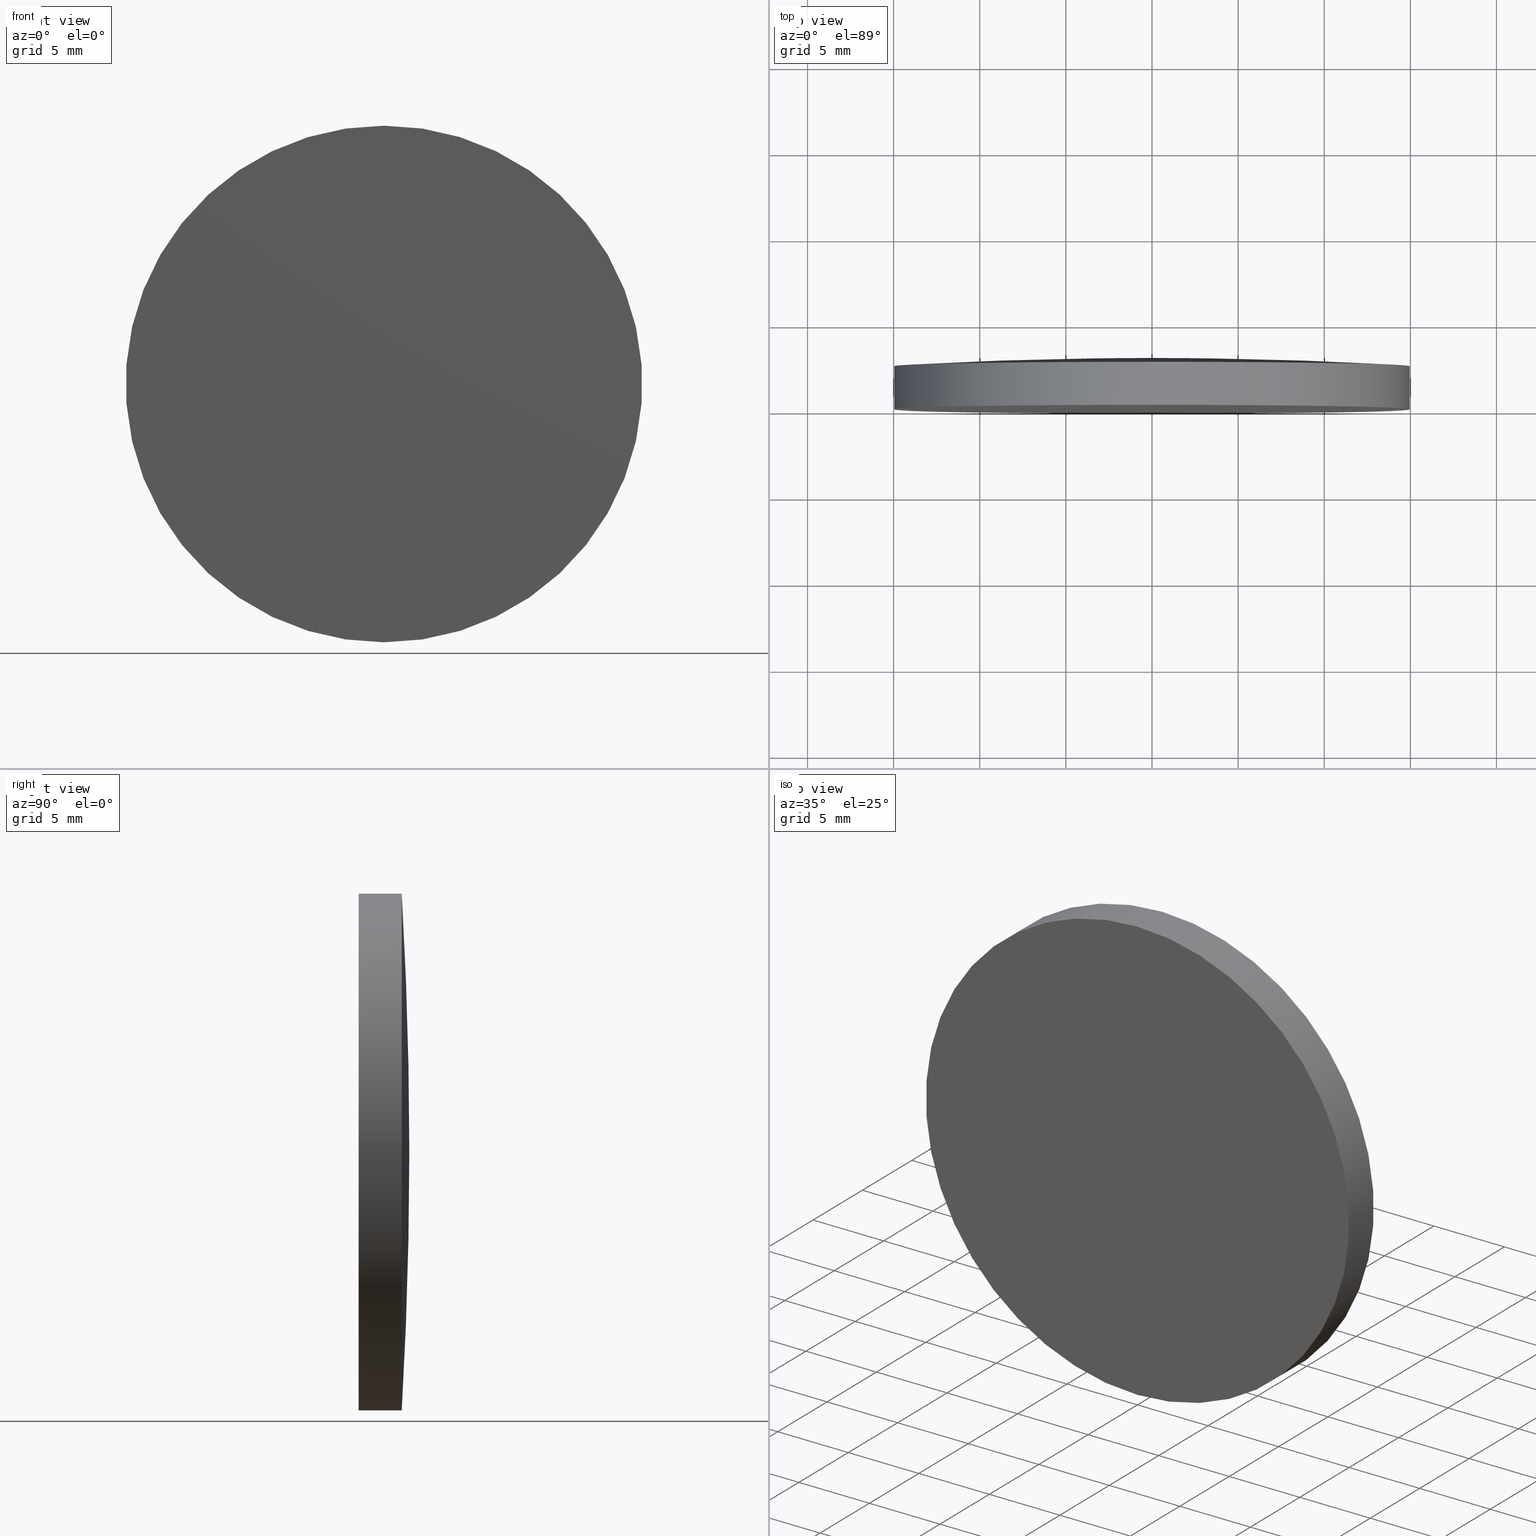
[diagram: canonical four-view strip — front | top / right | iso, engineering-drawing reading convention]
A machine part, canonical four-view strip (front | top / right | iso — engineering-drawing reading convention). The complete STEP part file that produces these views, byte-faithful:
ISO-10303-21;
HEADER;
FILE_DESCRIPTION (( 'STEP AP203' ),
    '1' );
FILE_NAME ('100580.STEP',
    '2024-05-10T01:19:31',
    ( '' ),
    ( '' ),
    'SwSTEP 2.0',
    'SolidWorks 2020',
    '' );
FILE_SCHEMA (( 'CONFIG_CONTROL_DESIGN' ));
ENDSEC;

DATA;
#1 = SHAPE_DEFINITION_REPRESENTATION ( #119, #191 ) ;
#2 = FACE_OUTER_BOUND ( 'NONE', #117, .T. ) ;
#3 = CARTESIAN_POINT ( 'NONE',  ( 0.000000000000000000, 2.939999999999999947, 0.000000000000000000 ) ) ;
#4 = FACE_OUTER_BOUND ( 'NONE', #192, .T. ) ;
#5 = AXIS2_PLACEMENT_3D ( 'NONE', #159, #8, #87 ) ;
#6 = PLANE ( 'NONE',  #23 ) ;
#7 = EDGE_CURVE ( 'NONE', #80, #58, #146, .T. ) ;
#8 = DIRECTION ( 'NONE',  ( -0.000000000000000000, 1.000000000000000000, -0.000000000000000000 ) ) ;
#9 = PERSON ( 'δָ��', 'δָ��', 'δָ��', ('δָ��'), ('δָ��'), ('δָ��') ) ;
#10 = PERSON_AND_ORGANIZATION_ROLE ( 'design_supplier' ) ;
#11 = CC_DESIGN_DATE_AND_TIME_ASSIGNMENT ( #140, #105, ( #201 ) ) ;
#12 = APPROVAL_DATE_TIME ( #199, #84 ) ;
#13 = DIRECTION ( 'NONE',  ( -0.000000000000000000, 1.000000000000000000, -0.000000000000000000 ) ) ;
#14 = APPROVAL_ROLE ( '' ) ;
#15 = CIRCLE ( 'NONE', #156, 258.1800000000000068 ) ;
#16 = APPROVAL_DATE_TIME ( #86, #76 ) ;
#17 = DIRECTION ( 'NONE',  ( 0.000000000000000000, 0.000000000000000000, 1.000000000000000000 ) ) ;
#18 = APPROVAL_STATUS ( 'not_yet_approved' ) ;
#19 = EDGE_LOOP ( 'NONE', ( #116, #115, #34, #132 ) ) ;
#20 = DIRECTION ( 'NONE',  ( -0.000000000000000000, 1.000000000000000000, -0.000000000000000000 ) ) ;
#21 = CC_DESIGN_PERSON_AND_ORGANIZATION_ASSIGNMENT ( #97, #65, ( #53 ) ) ;
#22 = DIRECTION ( 'NONE',  ( -0.000000000000000000, 1.000000000000000000, -0.000000000000000000 ) ) ;
#23 = AXIS2_PLACEMENT_3D ( 'NONE', #55, #127, #77 ) ;
#24 = ADVANCED_FACE ( 'NONE', ( #4 ), #144, .T. ) ;
#25 = VERTEX_POINT ( 'NONE', #3 ) ;
#26 =( LENGTH_UNIT ( ) NAMED_UNIT ( * ) SI_UNIT ( .MILLI., .METRE. ) );
#27 = PRODUCT_DEFINITION ( 'δ֪', '', #53, #50 ) ;
#28 = COORDINATED_UNIVERSAL_TIME_OFFSET ( 8, 0, .AHEAD. ) ;
#29 =( NAMED_UNIT ( * ) SI_UNIT ( $, .STERADIAN. ) SOLID_ANGLE_UNIT ( ) );
#30 = APPROVAL_PERSON_ORGANIZATION ( #62, #84, #112 ) ;
#31 = DATE_AND_TIME ( #33, #57 ) ;
#32 = AXIS2_PLACEMENT_3D ( 'NONE', #72, #187, #69 ) ;
#33 = CALENDAR_DATE ( 2024, 10, 5 ) ;
#34 = ORIENTED_EDGE ( 'NONE', *, *, #7, .T. ) ;
#35 = ORIENTED_EDGE ( 'NONE', *, *, #88, .F. ) ;
#36 = LOCAL_TIME ( 9, 19, 31.00000000000000000, #28 ) ;
#37 = CARTESIAN_POINT ( 'NONE',  ( 0.000000000000000000, 2.939999999999999947, 0.000000000000000000 ) ) ;
#38 = EDGE_CURVE ( 'NONE', #108, #58, #59, .T. ) ;
#39 = ORIENTED_EDGE ( 'NONE', *, *, #38, .T. ) ;
#40 = DATE_TIME_ROLE ( 'creation_date' ) ;
#41 = ORGANIZATION ( 'δָ��', 'δָ��', '' ) ;
#42 = APPROVAL_STATUS ( 'not_yet_approved' ) ;
#43 = TOROIDAL_SURFACE ( 'NONE', #5, -0.06682641297565267147, 258.1800000000000068 ) ;
#44 = DIRECTION ( 'NONE',  ( 1.000000000000000000, 0.000000000000000000, 0.000000000000000000 ) ) ;
#45 = MANIFOLD_SOLID_BREP ( '��ת1', #139 ) ;
#46 = CARTESIAN_POINT ( 'NONE',  ( 1.836970198721029589E-15, -1.734723475976807094E-15, -15.00000000000000000 ) ) ;
#47 = LOCAL_TIME ( 9, 19, 31.00000000000000000, #169 ) ;
#48 = ADVANCED_FACE ( 'NONE', ( #61 ), #161, .T. ) ;
#49 = CALENDAR_DATE ( 2024, 10, 5 ) ;
#50 = DESIGN_CONTEXT ( 'detailed design', #178, 'design' ) ;
#51 = CALENDAR_DATE ( 2024, 10, 5 ) ;
#52 = EDGE_LOOP ( 'NONE', ( #60, #39, #163 ) ) ;
#53 = PRODUCT_DEFINITION_FORMATION_WITH_SPECIFIED_SOURCE ( '�κ�', '', #123, .NOT_KNOWN. ) ;
#54 = ORIENTED_EDGE ( 'NONE', *, *, #133, .T. ) ;
#55 = CARTESIAN_POINT ( 'NONE',  ( 0.000000000000000000, -9.184850993605147944E-16, 0.000000000000000000 ) ) ;
#56 = LINE ( 'NONE', #110, #64 ) ;
#57 = LOCAL_TIME ( 9, 19, 31.00000000000000000, #197 ) ;
#58 = VERTEX_POINT ( 'NONE', #102 ) ;
#59 = CIRCLE ( 'NONE', #85, 15.00000000000000000 ) ;
#60 = ORIENTED_EDGE ( 'NONE', *, *, #103, .F. ) ;
#61 = FACE_OUTER_BOUND ( 'NONE', #19, .T. ) ;
#62 = PERSON_AND_ORGANIZATION ( #9, #41 ) ;
#63 = PERSON_AND_ORGANIZATION_ROLE ( 'design_owner' ) ;
#64 = VECTOR ( 'NONE', #20, 1000.000000000000000 ) ;
#65 = PERSON_AND_ORGANIZATION_ROLE ( 'creator' ) ;
#66 = ORIENTED_EDGE ( 'NONE', *, *, #190, .F. ) ;
#67 = CC_DESIGN_APPROVAL ( #84, ( #53 ) ) ;
#68 = PERSON_AND_ORGANIZATION ( #9, #41 ) ;
#69 = DIRECTION ( 'NONE',  ( 0.000000000000000000, 0.000000000000000000, 1.000000000000000000 ) ) ;
#70 = AXIS2_PLACEMENT_3D ( 'NONE', #37, #96, #157 ) ;
#71 = DIRECTION ( 'NONE',  ( 1.224646799147353207E-16, 0.000000000000000000, -1.000000000000000000 ) ) ;
#72 = CARTESIAN_POINT ( 'NONE',  ( 0.000000000000000000, 2.939999999999999947, 0.000000000000000000 ) ) ;
#73 = CC_DESIGN_APPROVAL ( #76, ( #201 ) ) ;
#74 = EDGE_LOOP ( 'NONE', ( #91, #172, #35 ) ) ;
#75 = ORIENTED_EDGE ( 'NONE', *, *, #98, .T. ) ;
#76 = APPROVAL ( #18, 'δָ��' ) ;
#77 = DIRECTION ( 'NONE',  ( 0.000000000000000000, -0.000000000000000000, -1.000000000000000000 ) ) ;
#78 = CIRCLE ( 'NONE', #185, 15.00000000000000000 ) ;
#79 = ADVANCED_FACE ( 'NONE', ( #129 ), #43, .T. ) ;
#80 = VERTEX_POINT ( 'NONE', #106 ) ;
#81 = SECURITY_CLASSIFICATION_LEVEL ( 'unclassified' ) ;
#82 = CARTESIAN_POINT ( 'NONE',  ( 0.000000000000000000, -255.2399913514417733, 0.000000000000000000 ) ) ;
#83 = APPROVAL_PERSON_ORGANIZATION ( #68, #76, #14 ) ;
#84 = APPROVAL ( #42, 'δָ��' ) ;
#85 = AXIS2_PLACEMENT_3D ( 'NONE', #89, #121, #173 ) ;
#86 = DATE_AND_TIME ( #49, #142 ) ;
#87 = DIRECTION ( 'NONE',  ( 0.000000000000000000, 0.000000000000000000, 1.000000000000000000 ) ) ;
#88 = EDGE_CURVE ( 'NONE', #58, #25, #189, .T. ) ;
#89 = CARTESIAN_POINT ( 'NONE',  ( 0.000000000000000000, 2.499999999999998224, 0.000000000000000000 ) ) ;
#90 = UNCERTAINTY_MEASURE_WITH_UNIT (LENGTH_MEASURE( 1.000000000000000082E-05 ), #26, 'distance_accuracy_value', 'NONE');
#91 = ORIENTED_EDGE ( 'NONE', *, *, #147, .T. ) ;
#92 = DIRECTION ( 'NONE',  ( 0.000000000000000000, 0.000000000000000000, 1.000000000000000000 ) ) ;
#93 =( GEOMETRIC_REPRESENTATION_CONTEXT ( 3 ) GLOBAL_UNCERTAINTY_ASSIGNED_CONTEXT ( ( #90 ) ) GLOBAL_UNIT_ASSIGNED_CONTEXT ( ( #26, #124, #29 ) ) REPRESENTATION_CONTEXT ( 'NONE', 'WORKASPACE' ) );
#94 = CIRCLE ( 'NONE', #109, 15.00000000000000000 ) ;
#95 = APPROVAL_PERSON_ORGANIZATION ( #122, #155, #153 ) ;
#96 = DIRECTION ( 'NONE',  ( -0.000000000000000000, 1.000000000000000000, -0.000000000000000000 ) ) ;
#97 = PERSON_AND_ORGANIZATION ( #9, #41 ) ;
#98 = EDGE_CURVE ( 'NONE', #80, #186, #78, .T. ) ;
#99 = PERSON_AND_ORGANIZATION_ROLE ( 'creator' ) ;
#100 = PERSON_AND_ORGANIZATION ( #9, #41 ) ;
#101 = APPLICATION_PROTOCOL_DEFINITION ( 'international standard', 'config_control_design', 1994, #196 ) ;
#102 = CARTESIAN_POINT ( 'NONE',  ( 0.000000000000000000, 2.500000000000028422, 14.99999999999983302 ) ) ;
#103 = EDGE_CURVE ( 'NONE', #108, #25, #15, .T. ) ;
#104 = DIRECTION ( 'NONE',  ( 1.000000000000000000, 0.000000000000000000, 1.224646799147353207E-16 ) ) ;
#105 = DATE_TIME_ROLE ( 'classification_date' ) ;
#106 = CARTESIAN_POINT ( 'NONE',  ( 0.000000000000000000, -1.734723475976807094E-15, 15.00000000000000000 ) ) ;
#107 = CC_DESIGN_PERSON_AND_ORGANIZATION_ASSIGNMENT ( #100, #63, ( #123 ) ) ;
#108 = VERTEX_POINT ( 'NONE', #143 ) ;
#109 = AXIS2_PLACEMENT_3D ( 'NONE', #118, #130, #92 ) ;
#110 = CARTESIAN_POINT ( 'NONE',  ( 1.836970198721029589E-15, 2.939999999999999947, -15.00000000000000000 ) ) ;
#111 = AXIS2_PLACEMENT_3D ( 'NONE', #160, #195, #17 ) ;
#112 = APPROVAL_ROLE ( '' ) ;
#113 = MECHANICAL_CONTEXT ( 'NONE', #196, 'mechanical' ) ;
#114 = COORDINATED_UNIVERSAL_TIME_OFFSET ( 8, 0, .AHEAD. ) ;
#115 = ORIENTED_EDGE ( 'NONE', *, *, #190, .T. ) ;
#116 = ORIENTED_EDGE ( 'NONE', *, *, #133, .F. ) ;
#117 = EDGE_LOOP ( 'NONE', ( #145, #66 ) ) ;
#118 = CARTESIAN_POINT ( 'NONE',  ( 0.000000000000000000, 2.499999999999998224, 0.000000000000000000 ) ) ;
#119 = PRODUCT_DEFINITION_SHAPE ( 'NONE', 'NONE',  #27 ) ;
#120 = PRODUCT_RELATED_PRODUCT_CATEGORY ( 'detail', '', ( #123 ) ) ;
#121 = DIRECTION ( 'NONE',  ( -0.000000000000000000, 1.000000000000000000, -0.000000000000000000 ) ) ;
#122 = PERSON_AND_ORGANIZATION ( #9, #41 ) ;
#123 = PRODUCT ( '100580', '100580', '', ( #113 ) ) ;
#124 =( NAMED_UNIT ( * ) PLANE_ANGLE_UNIT ( ) SI_UNIT ( $, .RADIAN. ) );
#125 = CC_DESIGN_PERSON_AND_ORGANIZATION_ASSIGNMENT ( #167, #99, ( #27 ) ) ;
#126 = CC_DESIGN_DATE_AND_TIME_ASSIGNMENT ( #31, #40, ( #27 ) ) ;
#127 = DIRECTION ( 'NONE',  ( 0.000000000000000000, -1.000000000000000000, 0.000000000000000000 ) ) ;
#128 = APPLICATION_PROTOCOL_DEFINITION ( 'international standard', 'config_control_design', 1994, #178 ) ;
#129 = FACE_OUTER_BOUND ( 'NONE', #52, .T. ) ;
#130 = DIRECTION ( 'NONE',  ( -0.000000000000000000, 1.000000000000000000, -0.000000000000000000 ) ) ;
#131 = DIRECTION ( 'NONE',  ( 0.000000000000000000, 0.000000000000000000, 1.000000000000000000 ) ) ;
#132 = ORIENTED_EDGE ( 'NONE', *, *, #38, .F. ) ;
#133 = EDGE_CURVE ( 'NONE', #186, #108, #56, .T. ) ;
#134 = APPROVAL_STATUS ( 'not_yet_approved' ) ;
#135 = DIRECTION ( 'NONE',  ( 0.000000000000000000, 0.000000000000000000, 1.000000000000000000 ) ) ;
#136 = DATE_AND_TIME ( #168, #198 ) ;
#137 = PERSON_AND_ORGANIZATION ( #9, #41 ) ;
#138 = DIRECTION ( 'NONE',  ( 0.000000000000000000, 0.000000000000000000, 1.000000000000000000 ) ) ;
#139 = CLOSED_SHELL ( 'NONE', ( #24, #194, #79, #162, #48 ) ) ;
#140 = DATE_AND_TIME ( #51, #47 ) ;
#141 = PERSON_AND_ORGANIZATION_ROLE ( 'classification_officer' ) ;
#142 = LOCAL_TIME ( 9, 19, 31.00000000000000000, #171 ) ;
#143 = CARTESIAN_POINT ( 'NONE',  ( 1.836970198721009473E-15, 2.500000000000028422, -14.99999999999983302 ) ) ;
#144 = CYLINDRICAL_SURFACE ( 'NONE', #32, 15.00000000000000000 ) ;
#145 = ORIENTED_EDGE ( 'NONE', *, *, #98, .F. ) ;
#146 = LINE ( 'NONE', #175, #193 ) ;
#147 = EDGE_CURVE ( 'NONE', #58, #108, #94, .T. ) ;
#148 = ORIENTED_EDGE ( 'NONE', *, *, #147, .F. ) ;
#149 = PERSON_AND_ORGANIZATION ( #9, #41 ) ;
#150 = ORIENTED_EDGE ( 'NONE', *, *, #7, .F. ) ;
#151 = TOROIDAL_SURFACE ( 'NONE', #174, -0.06682641297565267147, 258.1800000000000068 ) ;
#152 = CALENDAR_DATE ( 2024, 10, 5 ) ;
#153 = APPROVAL_ROLE ( '' ) ;
#154 = AXIS2_PLACEMENT_3D ( 'NONE', #200, #181, #44 ) ;
#155 = APPROVAL ( #134, 'δָ��' ) ;
#156 = AXIS2_PLACEMENT_3D ( 'NONE', #180, #104, #71 ) ;
#157 = DIRECTION ( 'NONE',  ( 0.000000000000000000, 0.000000000000000000, 1.000000000000000000 ) ) ;
#158 = CC_DESIGN_SECURITY_CLASSIFICATION ( #201, ( #53 ) ) ;
#159 = CARTESIAN_POINT ( 'NONE',  ( 0.000000000000000000, -255.2399913514417733, 0.000000000000000000 ) ) ;
#160 = CARTESIAN_POINT ( 'NONE',  ( 0.000000000000000000, -255.2399913514417733, -0.06682641297565267147 ) ) ;
#161 = CYLINDRICAL_SURFACE ( 'NONE', #70, 15.00000000000000000 ) ;
#162 = ADVANCED_FACE ( 'NONE', ( #2 ), #6, .T. ) ;
#163 = ORIENTED_EDGE ( 'NONE', *, *, #88, .T. ) ;
#164 = CC_DESIGN_PERSON_AND_ORGANIZATION_ASSIGNMENT ( #137, #141, ( #201 ) ) ;
#165 = CARTESIAN_POINT ( 'NONE',  ( 0.000000000000000000, -1.734723475976807094E-15, 0.000000000000000000 ) ) ;
#166 = FACE_OUTER_BOUND ( 'NONE', #74, .T. ) ;
#167 = PERSON_AND_ORGANIZATION ( #9, #41 ) ;
#168 = CALENDAR_DATE ( 2024, 10, 5 ) ;
#169 = COORDINATED_UNIVERSAL_TIME_OFFSET ( 8, 0, .AHEAD. ) ;
#170 = CIRCLE ( 'NONE', #179, 15.00000000000000000 ) ;
#171 = COORDINATED_UNIVERSAL_TIME_OFFSET ( 8, 0, .AHEAD. ) ;
#172 = ORIENTED_EDGE ( 'NONE', *, *, #103, .T. ) ;
#173 = DIRECTION ( 'NONE',  ( 0.000000000000000000, 0.000000000000000000, 1.000000000000000000 ) ) ;
#174 = AXIS2_PLACEMENT_3D ( 'NONE', #82, #13, #138 ) ;
#175 = CARTESIAN_POINT ( 'NONE',  ( 0.000000000000000000, 2.939999999999999947, 15.00000000000000000 ) ) ;
#176 = CARTESIAN_POINT ( 'NONE',  ( 0.000000000000000000, -1.734723475976807094E-15, 0.000000000000000000 ) ) ;
#177 = CC_DESIGN_PERSON_AND_ORGANIZATION_ASSIGNMENT ( #149, #10, ( #53 ) ) ;
#178 = APPLICATION_CONTEXT ( 'configuration controlled 3d designs of mechanical parts and assemblies' ) ;
#179 = AXIS2_PLACEMENT_3D ( 'NONE', #165, #184, #135 ) ;
#180 = CARTESIAN_POINT ( 'NONE',  ( -8.183875274913219801E-18, -255.2399913514417733, 0.06682641297565267147 ) ) ;
#181 = DIRECTION ( 'NONE',  ( 0.000000000000000000, 0.000000000000000000, 1.000000000000000000 ) ) ;
#182 = CC_DESIGN_APPROVAL ( #155, ( #27 ) ) ;
#183 = APPROVAL_DATE_TIME ( #136, #155 ) ;
#184 = DIRECTION ( 'NONE',  ( -0.000000000000000000, 1.000000000000000000, -0.000000000000000000 ) ) ;
#185 = AXIS2_PLACEMENT_3D ( 'NONE', #176, #188, #131 ) ;
#186 = VERTEX_POINT ( 'NONE', #46 ) ;
#187 = DIRECTION ( 'NONE',  ( -0.000000000000000000, 1.000000000000000000, -0.000000000000000000 ) ) ;
#188 = DIRECTION ( 'NONE',  ( -0.000000000000000000, 1.000000000000000000, -0.000000000000000000 ) ) ;
#189 = CIRCLE ( 'NONE', #111, 258.1800000000000068 ) ;
#190 = EDGE_CURVE ( 'NONE', #186, #80, #170, .T. ) ;
#191 = ADVANCED_BREP_SHAPE_REPRESENTATION ( '100580', ( #45, #154 ), #93 ) ;
#192 = EDGE_LOOP ( 'NONE', ( #75, #54, #148, #150 ) ) ;
#193 = VECTOR ( 'NONE', #22, 1000.000000000000000 ) ;
#194 = ADVANCED_FACE ( 'NONE', ( #166 ), #151, .T. ) ;
#195 = DIRECTION ( 'NONE',  ( -1.000000000000000000, 0.000000000000000000, 0.000000000000000000 ) ) ;
#196 = APPLICATION_CONTEXT ( 'configuration controlled 3d designs of mechanical parts and assemblies' ) ;
#197 = COORDINATED_UNIVERSAL_TIME_OFFSET ( 8, 0, .AHEAD. ) ;
#198 = LOCAL_TIME ( 9, 19, 31.00000000000000000, #114 ) ;
#199 = DATE_AND_TIME ( #152, #36 ) ;
#200 = CARTESIAN_POINT ( 'NONE',  ( 0.000000000000000000, 0.000000000000000000, 0.000000000000000000 ) ) ;
#201 = SECURITY_CLASSIFICATION ( '', '', #81 ) ;
ENDSEC;
END-ISO-10303-21;
